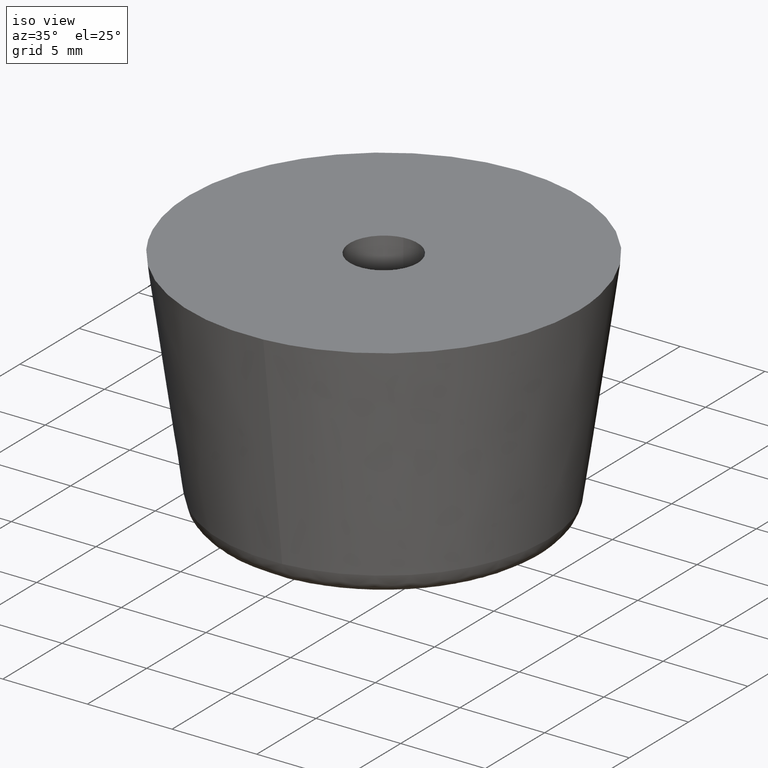
[diagram: clean part render]
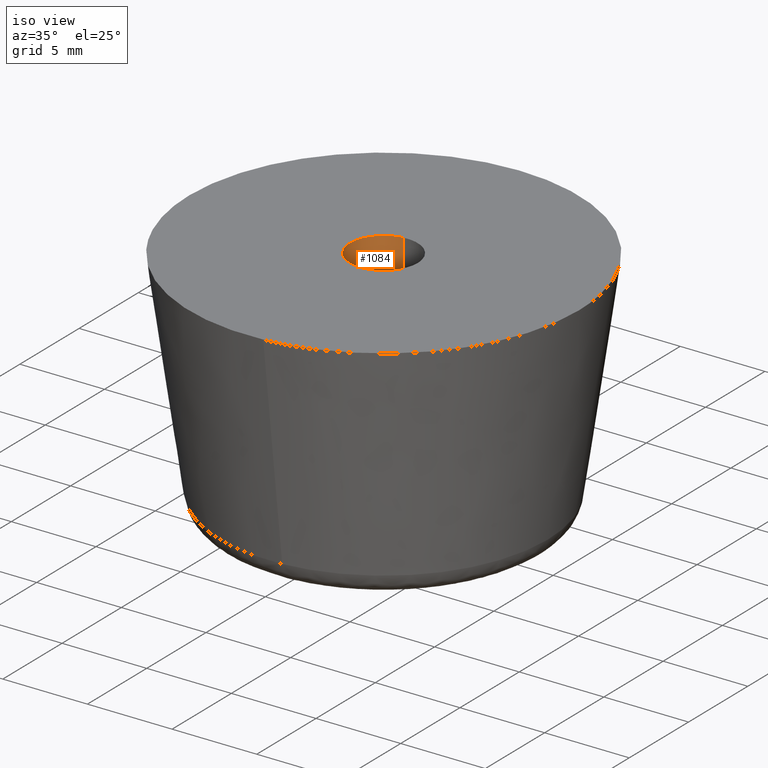
[diagram: same view with one face highlighted and labeled with its STEP entity id]
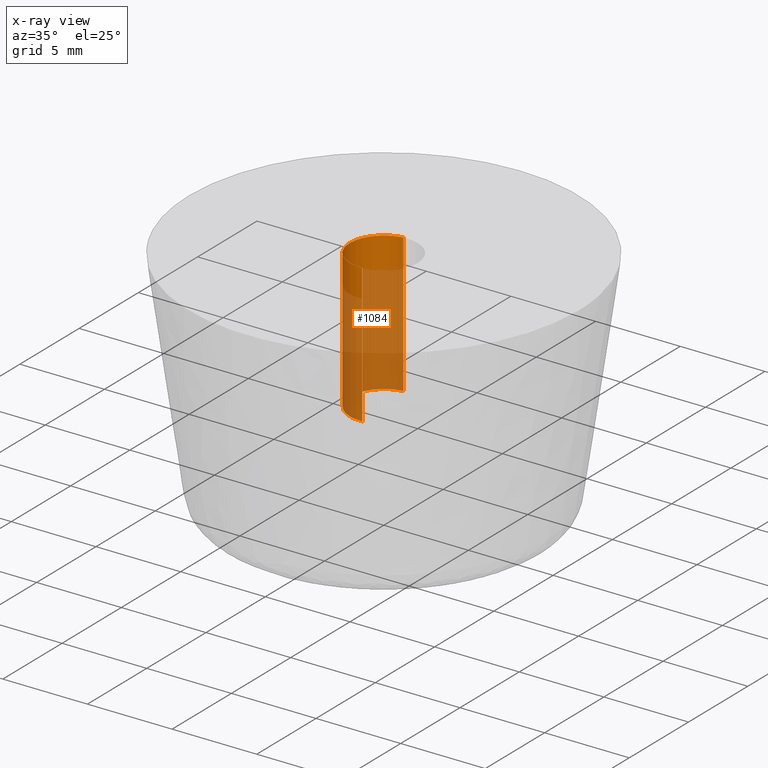
[diagram: x-ray of the same camera — body ghosted, the highlighted face saturated]
A machine part, iso view. The second image highlights one B-rep face of the part: STEP entity #1084.
The next image is the same camera in x-ray: the body ghosted, the highlighted face saturated — about 75% of this face is hidden behind the body in this view.
In plain terms, the highlighted face is a freeform B-spline surface patch.
Its self-contained STEP definition (entity closure, byte-faithful):
#921=CARTESIAN_POINT('',(-0.236065886624471,1.986019359715669,14.000000000000011));
#922=VERTEX_POINT('',#921);
#940=CARTESIAN_POINT('',(-0.236065917800784,1.986019356009974,5.800000000000001));
#941=VERTEX_POINT('',#940);
#942=CARTESIAN_POINT('',(-0.236065886624471,1.986019359715669,14.000000000000011));
#943=CARTESIAN_POINT('',(-0.236065917800784,1.986019356009974,5.800000000000001));
#944=QUASI_UNIFORM_CURVE('',1,(#942,#943),.UNSPECIFIED.,.F.,.U.);
#945=EDGE_CURVE('',#922,#941,#944,.T.);
#964=CARTESIAN_POINT('',(0.122097079102479,-1.996269596841730,5.799999999999999));
#965=VERTEX_POINT('',#964);
#979=CARTESIAN_POINT('',(0.122097079102479,-1.996269596841730,14.0));
#980=VERTEX_POINT('',#979);
#981=CARTESIAN_POINT('',(0.122097079102479,-1.996269596841730,14.0));
#982=CARTESIAN_POINT('',(0.122097079102479,-1.996269596841730,5.799999999999999));
#983=QUASI_UNIFORM_CURVE('',1,(#981,#982),.UNSPECIFIED.,.F.,.U.);
#984=EDGE_CURVE('',#980,#965,#983,.T.);
#1002=CARTESIAN_POINT('',(0.122097079069714,-1.996269596843733,14.205000000000000));
#1003=CARTESIAN_POINT('',(-1.874172517774020,-2.118366675913447,14.205000000000004));
#1004=CARTESIAN_POINT('',(-1.996269596843733,-0.122097079069714,14.205000000000000));
#1005=CARTESIAN_POINT('',(-2.111572393465055,1.763086981679002,14.204999999999998));
#1006=CARTESIAN_POINT('',(-0.236068469313517,1.986019052727332,14.205000000000005));
#1007=CARTESIAN_POINT('',(0.122097079069714,-1.996269596843733,5.589874999999999));
#1008=CARTESIAN_POINT('',(-1.874172517774020,-2.118366675913447,5.589874999999999));
#1009=CARTESIAN_POINT('',(-1.996269596843733,-0.122097079069714,5.589874999999999));
#1010=CARTESIAN_POINT('',(-2.111572393465055,1.763086981679002,5.589874999999999));
#1011=CARTESIAN_POINT('',(-0.236068469313517,1.986019052727332,5.589874999999999));
#1019=(BOUNDED_SURFACE()B_SPLINE_SURFACE(2,1,((#1002,#1007),(#1003,#1008),(#1004,#1009),(#1005,#1010),(#1006,#1011)),.UNSPECIFIED.,.F.,.F.,.U.)B_SPLINE_SURFACE_WITH_KNOTS((3,2,3),(2,2),(0.0,3.313708498984759,6.494868658010128),(0.0,8.615125000000004),.UNSPECIFIED.)GEOMETRIC_REPRESENTATION_ITEM()RATIONAL_B_SPLINE_SURFACE(((1.0,1.0),(0.707106781186548,0.707106781186548),(1.0,1.0),(0.718822509939086,0.718822509939086),(0.977505800795127,0.977505800795127)))REPRESENTATION_ITEM('')SURFACE());
#1020=CARTESIAN_POINT('',(-2.0,0.0,14.0));
#1021=VERTEX_POINT('',#1020);
#1022=CARTESIAN_POINT('',(-2.0,0.0,14.0));
#1023=CARTESIAN_POINT('',(-2.000000000000000,1.776351378192379,13.999999999999991));
#1024=CARTESIAN_POINT('',(-0.236065886624471,1.986019359715669,14.000000000000016));
#1032=(BOUNDED_CURVE()B_SPLINE_CURVE(2,(#1022,#1023,#1024),.UNSPECIFIED.,.F.,.U.)B_SPLINE_CURVE_WITH_KNOTS((3,3),(0.0,0.229562693293432),.UNSPECIFIED.)CURVE()GEOMETRIC_REPRESENTATION_ITEM()RATIONAL_B_SPLINE_CURVE((1.0,0.731050575367205,0.956027184961797))REPRESENTATION_ITEM(''));
#1033=EDGE_CURVE('',#1021,#922,#1032,.T.);
#1034=ORIENTED_EDGE('',*,*,#1033,.F.);
#1035=CARTESIAN_POINT('',(0.122097079102479,-1.996269596841730,13.999999999999996));
#1036=CARTESIAN_POINT('',(0.061105526630035,-2.0,14.000000000000007));
#1037=CARTESIAN_POINT('',(0.0,-2.0,14.0));
#1038=CARTESIAN_POINT('',(-2.000000000000000,-2.000000000000000,13.999999999999998));
#1039=CARTESIAN_POINT('',(-2.0,0.0,14.0));
#1047=(BOUNDED_CURVE()B_SPLINE_CURVE(2,(#1035,#1036,#1037,#1038,#1039),.UNSPECIFIED.,.F.,.U.)B_SPLINE_CURVE_WITH_KNOTS((3,2,3),(0.739332962236304,0.750000000000000,1.0),.UNSPECIFIED.)CURVE()GEOMETRIC_REPRESENTATION_ITEM()RATIONAL_B_SPLINE_CURVE((0.976072041661062,0.987502787896746,1.0,0.707106781186548,1.0))REPRESENTATION_ITEM(''));
#1048=EDGE_CURVE('',#980,#1021,#1047,.T.);
#1049=ORIENTED_EDGE('',*,*,#1048,.F.);
#1050=ORIENTED_EDGE('',*,*,#984,.T.);
#1051=CARTESIAN_POINT('',(-2.0,0.0,5.800000000000000));
#1052=VERTEX_POINT('',#1051);
#1053=CARTESIAN_POINT('',(0.122097079102479,-1.996269596841730,5.799999999999999));
#1054=CARTESIAN_POINT('',(0.061105526630035,-2.0,5.800000000000001));
#1055=CARTESIAN_POINT('',(0.0,-2.0,5.800000000000000));
#1056=CARTESIAN_POINT('',(-2.000000000000000,-2.000000000000000,5.800000000000001));
#1057=CARTESIAN_POINT('',(-2.0,0.0,5.800000000000000));
#1065=(BOUNDED_CURVE()B_SPLINE_CURVE(2,(#1053,#1054,#1055,#1056,#1057),.UNSPECIFIED.,.F.,.U.)B_SPLINE_CURVE_WITH_KNOTS((3,2,3),(0.739332962236304,0.750000000000000,1.0),.UNSPECIFIED.)CURVE()GEOMETRIC_REPRESENTATION_ITEM()RATIONAL_B_SPLINE_CURVE((0.976072041661062,0.987502787896746,1.0,0.707106781186548,1.0))REPRESENTATION_ITEM(''));
#1066=EDGE_CURVE('',#965,#1052,#1065,.T.);
#1067=ORIENTED_EDGE('',*,*,#1066,.T.);
#1068=CARTESIAN_POINT('',(-2.0,0.0,5.800000000000000));
#1069=CARTESIAN_POINT('',(-2.000000000000000,1.776351350111119,5.800000000000000));
#1070=CARTESIAN_POINT('',(-0.236065917800784,1.986019356009974,5.800000000000002));
#1078=(BOUNDED_CURVE()B_SPLINE_CURVE(2,(#1068,#1069,#1070),.UNSPECIFIED.,.F.,.U.)B_SPLINE_CURVE_WITH_KNOTS((3,3),(0.0,0.229562690640437),.UNSPECIFIED.)CURVE()GEOMETRIC_REPRESENTATION_ITEM()RATIONAL_B_SPLINE_CURVE((1.0,0.731050578475383,0.956027179761807))REPRESENTATION_ITEM(''));
#1079=EDGE_CURVE('',#1052,#941,#1078,.T.);
#1080=ORIENTED_EDGE('',*,*,#1079,.T.);
#1081=ORIENTED_EDGE('',*,*,#945,.F.);
#1082=EDGE_LOOP('',(#1034,#1049,#1050,#1067,#1080,#1081));
#1083=FACE_OUTER_BOUND('',#1082,.T.);
#1084=ADVANCED_FACE('',(#1083),#1019,.F.);